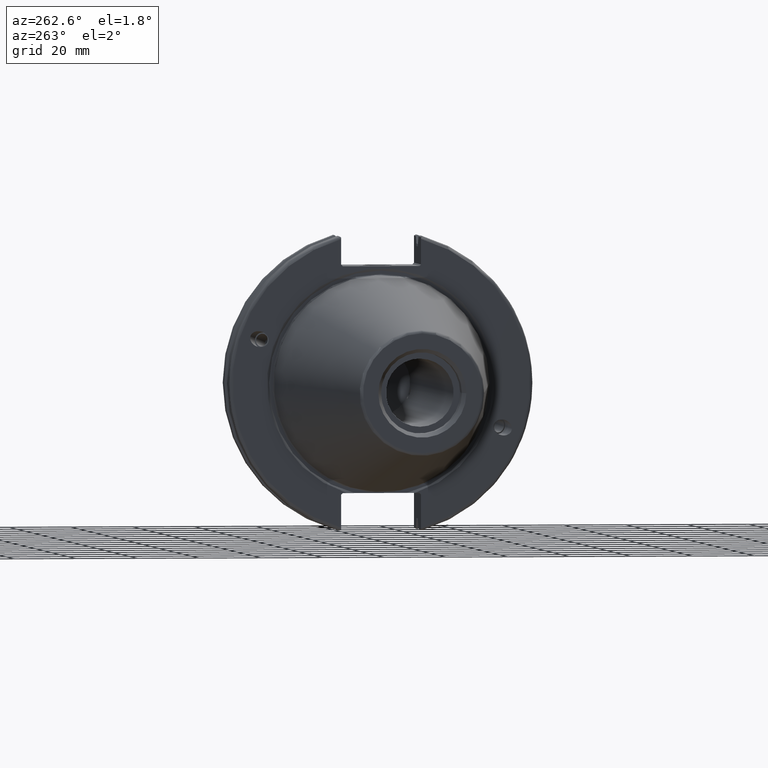
[diagram: clean part render]
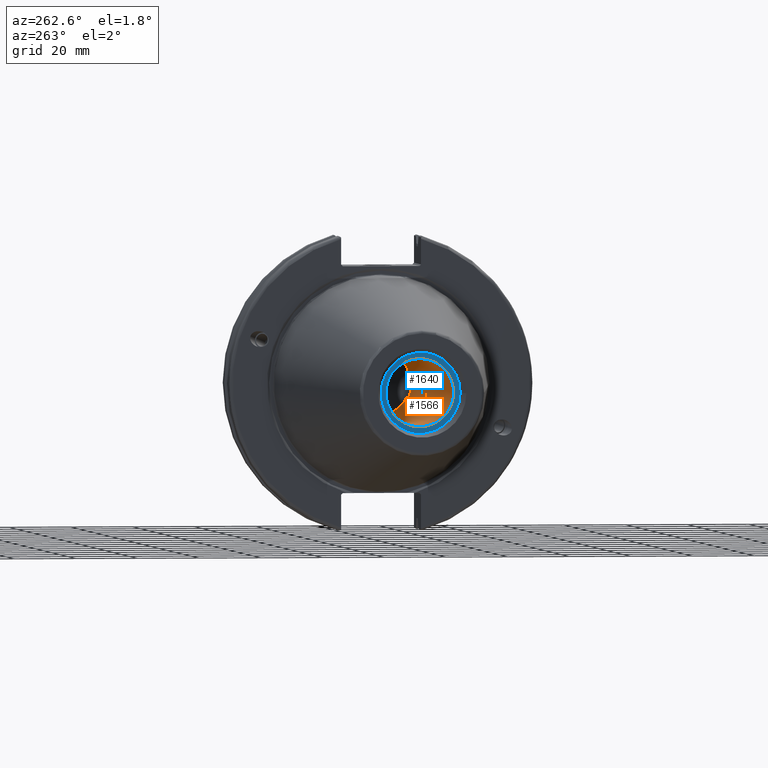
[diagram: same view with the hole feature highlighted: cylindrical wall and planar end face, labeled with their STEP entity ids]
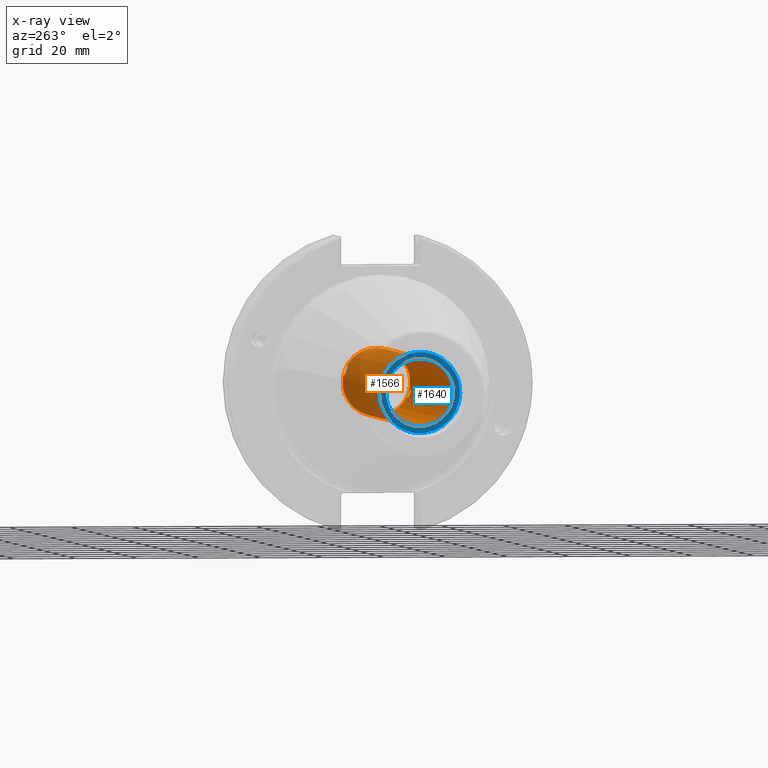
[diagram: x-ray of the same camera — body ghosted, the hole faces saturated]
A machine part, auxiliary view. The highlighted faces form one hole feature of diameter 21.971 mm: the cylindrical wall (entity #1566, orange) and its adjacent planar end face (entity #1640, blue) — they share a circular edge in the B-rep.
The next image is the same camera in x-ray (body ghosted, the hole faces saturated) — the bore reads through the body.
Wall:
#64=FACE_BOUND('',#229,.T.);
#65=FACE_BOUND('',#230,.T.);
#133=FACE_OUTER_BOUND('',#228,.T.);
#228=EDGE_LOOP('',(#1120,#1121,#1122,#1123));
#229=EDGE_LOOP('',(#1124,#1125));
#230=EDGE_LOOP('',(#1126,#1127));
#324=B_SPLINE_CURVE_WITH_KNOTS('',3,(#2469,#2470,#2471,#2472,#2473,#2474,
#2475,#2476,#2477,#2478,#2479,#2480,#2481,#2482,#2483,#2484,#2485,#2486,
#2487,#2488,#2489,#2490,#2491,#2492,#2493,#2494),.UNSPECIFIED.,.F.,.F.,
(4,2,2,2,2,2,2,2,2,2,2,2,4),(0.,0.0611574273332737,0.122314854666547,0.183471284102352,
0.244627713538156,0.30578414297396,0.366940572409764,0.428097999743038,
0.489255427076312,0.550412854409585,0.611570281742859,0.672726711178663,
0.733883140614467),.UNSPECIFIED.);
#325=B_SPLINE_CURVE_WITH_KNOTS('',3,(#2495,#2496,#2497,#2498,#2499,#2500,
#2501,#2502,#2503,#2504),.UNSPECIFIED.,.F.,.F.,(4,2,2,2,4),(0.733883140614467,
0.795039570050271,0.856195999486075,0.917353426819349,0.978510854152623),
 .UNSPECIFIED.);
#326=B_SPLINE_CURVE_WITH_KNOTS('',3,(#2507,#2508,#2509,#2510,#2511,#2512,
#2513,#2514,#2515,#2516,#2517,#2518,#2519,#2520,#2521,#2522,#2523,#2524,
#2525,#2526,#2527,#2528,#2529,#2530,#2531,#2532),.UNSPECIFIED.,.F.,.F.,
(4,2,2,2,2,2,2,2,2,2,2,2,4),(0.,0.0611574273332737,0.122314854666547,0.183471284102352,
0.244627713538156,0.30578414297396,0.366940572409764,0.428097999743038,
0.489255427076312,0.550412854409585,0.611570281742859,0.672726711178663,
0.733883140614467),.UNSPECIFIED.);
#327=B_SPLINE_CURVE_WITH_KNOTS('',3,(#2533,#2534,#2535,#2536,#2537,#2538,
#2539,#2540,#2541,#2542),.UNSPECIFIED.,.F.,.F.,(4,2,2,2,4),(0.733883140614467,
0.795039570050271,0.856195999486075,0.917353426819349,0.978510854152623),
 .UNSPECIFIED.);
#381=LINE('',#2466,#475);
#475=VECTOR('',#1944,10.9855);
#577=CIRCLE('',#1704,10.9855);
#578=CIRCLE('',#1706,10.9855);
#671=VERTEX_POINT('',#2460);
#672=VERTEX_POINT('',#2464);
#673=VERTEX_POINT('',#2467);
#674=VERTEX_POINT('',#2468);
#675=VERTEX_POINT('',#2505);
#676=VERTEX_POINT('',#2506);
#844=EDGE_CURVE('',#671,#671,#577,.T.);
#846=EDGE_CURVE('',#672,#672,#578,.T.);
#847=EDGE_CURVE('',#672,#671,#381,.T.);
#848=EDGE_CURVE('',#673,#674,#324,.T.);
#849=EDGE_CURVE('',#674,#673,#325,.T.);
#850=EDGE_CURVE('',#675,#676,#326,.T.);
#851=EDGE_CURVE('',#676,#675,#327,.T.);
#1120=ORIENTED_EDGE('',*,*,#846,.F.);
#1121=ORIENTED_EDGE('',*,*,#847,.T.);
#1122=ORIENTED_EDGE('',*,*,#844,.F.);
#1123=ORIENTED_EDGE('',*,*,#847,.F.);
#1124=ORIENTED_EDGE('',*,*,#848,.F.);
#1125=ORIENTED_EDGE('',*,*,#849,.F.);
#1126=ORIENTED_EDGE('',*,*,#850,.F.);
#1127=ORIENTED_EDGE('',*,*,#851,.F.);
#1529=CYLINDRICAL_SURFACE('',#1705,10.9855);
#1566=ADVANCED_FACE('',(#133,#64,#65),#1529,.F.);
#1704=AXIS2_PLACEMENT_3D('',#2461,#1937,#1938);
#1705=AXIS2_PLACEMENT_3D('',#2463,#1940,#1941);
#1706=AXIS2_PLACEMENT_3D('',#2465,#1942,#1943);
#1937=DIRECTION('center_axis',(-1.,0.,0.));
#1938=DIRECTION('ref_axis',(0.,0.,1.));
#1940=DIRECTION('center_axis',(-1.,0.,0.));
#1941=DIRECTION('ref_axis',(0.,0.,1.));
#1942=DIRECTION('center_axis',(1.,0.,0.));
#1943=DIRECTION('ref_axis',(0.,0.,1.));
#1944=DIRECTION('',(1.,0.,0.));
#2460=CARTESIAN_POINT('',(13.4,-1.34533574120333E-15,-10.9855));
#2461=CARTESIAN_POINT('Origin',(13.4,0.,0.));
#2463=CARTESIAN_POINT('Origin',(-44.1,0.,0.));
#2464=CARTESIAN_POINT('',(-95.25,1.34533574120333E-15,-10.9855));
#2465=CARTESIAN_POINT('Origin',(-95.25,0.,0.));
#2466=CARTESIAN_POINT('',(-44.1,-1.34533574120333E-15,-10.9855));
#2467=CARTESIAN_POINT('',(11.127,-10.7644060814244,-2.19289123400911));
#2468=CARTESIAN_POINT('',(9.506,-10.3229932856436,-3.75726228450413));
#2469=CARTESIAN_POINT('Ctrl Pts',(11.127,-10.7644060814244,-2.19289123400911));
#2470=CARTESIAN_POINT('Ctrl Pts',(11.3308580911109,-10.7644060814244,-2.19289123400911));
#2471=CARTESIAN_POINT('Ctrl Pts',(11.5480976425658,-10.7563992112981,-2.23339769026782));
#2472=CARTESIAN_POINT('Ctrl Pts',(11.9473884896352,-10.7211890589831,-2.39672575217716));
#2473=CARTESIAN_POINT('Ctrl Pts',(12.1294656702174,-10.6936730645534,-2.51941648519806));
#2474=CARTESIAN_POINT('Ctrl Pts',(12.4169721687679,-10.6236838882786,-2.79990053351312));
#2475=CARTESIAN_POINT('Ctrl Pts',(12.5416766094346,-10.5764720644486,-2.97648040123253));
#2476=CARTESIAN_POINT('Ctrl Pts',(12.7071987049788,-10.4611409987277,-3.35942344936975));
#2477=CARTESIAN_POINT('Ctrl Pts',(12.748,-10.3927157215133,-3.56570146632267));
#2478=CARTESIAN_POINT('Ctrl Pts',(12.748,-10.2532708497739,-3.9488231026856));
#2479=CARTESIAN_POINT('Ctrl Pts',(12.7071987049788,-10.1730946997047,-4.15082415169272));
#2480=CARTESIAN_POINT('Ctrl Pts',(12.5416766094346,-10.015292375161,-4.51830892580662));
#2481=CARTESIAN_POINT('Ctrl Pts',(12.4169721687679,-9.93795537936544,-4.68392412762843));
#2482=CARTESIAN_POINT('Ctrl Pts',(12.1294656702174,-9.81127852795753,-4.94377554954527));
#2483=CARTESIAN_POINT('Ctrl Pts',(11.9473884896352,-9.75349291957811,-5.05544904408575));
#2484=CARTESIAN_POINT('Ctrl Pts',(11.5480976425658,-9.67548020659099,-5.20319824796008));
#2485=CARTESIAN_POINT('Ctrl Pts',(11.3308580911109,-9.65557677676255,-5.23937471059702));
#2486=CARTESIAN_POINT('Ctrl Pts',(10.9231419088891,-9.65557677676255,-5.23937471059702));
#2487=CARTESIAN_POINT('Ctrl Pts',(10.7059023574342,-9.67548020659099,-5.20319824796008));
#2488=CARTESIAN_POINT('Ctrl Pts',(10.3066115103648,-9.75349291957811,-5.05544904408574));
#2489=CARTESIAN_POINT('Ctrl Pts',(10.1245343297826,-9.81127852795753,-4.94377554954527));
#2490=CARTESIAN_POINT('Ctrl Pts',(9.83702783123206,-9.93795537936544,-4.68392412762843));
#2491=CARTESIAN_POINT('Ctrl Pts',(9.71232339056537,-10.015292375161,-4.51830892580662));
#2492=CARTESIAN_POINT('Ctrl Pts',(9.54680129502121,-10.1730946997047,-4.15082415169272));
#2493=CARTESIAN_POINT('Ctrl Pts',(9.506,-10.2532708497739,-3.9488231026856));
#2494=CARTESIAN_POINT('Ctrl Pts',(9.506,-10.3229932856436,-3.75726228450413));
#2495=CARTESIAN_POINT('Ctrl Pts',(9.506,-10.3229932856436,-3.75726228450413));
#2496=CARTESIAN_POINT('Ctrl Pts',(9.506,-10.3927157215133,-3.56570146632267));
#2497=CARTESIAN_POINT('Ctrl Pts',(9.54680129502121,-10.4611409987277,-3.35942344936975));
#2498=CARTESIAN_POINT('Ctrl Pts',(9.71232339056537,-10.5764720644486,-2.97648040123253));
#2499=CARTESIAN_POINT('Ctrl Pts',(9.83702783123205,-10.6236838882786,-2.79990053351312));
#2500=CARTESIAN_POINT('Ctrl Pts',(10.1245343297826,-10.6936730645534,-2.51941648519806));
#2501=CARTESIAN_POINT('Ctrl Pts',(10.3066115103648,-10.7211890589831,-2.39672575217716));
#2502=CARTESIAN_POINT('Ctrl Pts',(10.7059023574342,-10.7563992112981,-2.23339769026782));
#2503=CARTESIAN_POINT('Ctrl Pts',(10.9231419088891,-10.7644060814244,-2.19289123400911));
#2504=CARTESIAN_POINT('Ctrl Pts',(11.127,-10.7644060814244,-2.19289123400911));
#2505=CARTESIAN_POINT('',(11.127,10.7644060814244,2.19289123400911));
#2506=CARTESIAN_POINT('',(9.506,10.3229932856436,3.75726228450413));
#2507=CARTESIAN_POINT('Ctrl Pts',(11.127,10.7644060814244,2.19289123400911));
#2508=CARTESIAN_POINT('Ctrl Pts',(11.3308580911109,10.7644060814244,2.19289123400911));
#2509=CARTESIAN_POINT('Ctrl Pts',(11.5480976425658,10.7563992112981,2.23339769026782));
#2510=CARTESIAN_POINT('Ctrl Pts',(11.9473884896352,10.7211890589831,2.39672575217716));
#2511=CARTESIAN_POINT('Ctrl Pts',(12.1294656702174,10.6936730645534,2.51941648519806));
#2512=CARTESIAN_POINT('Ctrl Pts',(12.4169721687679,10.6236838882786,2.79990053351312));
#2513=CARTESIAN_POINT('Ctrl Pts',(12.5416766094346,10.5764720644486,2.97648040123253));
#2514=CARTESIAN_POINT('Ctrl Pts',(12.7071987049788,10.4611409987277,3.35942344936975));
#2515=CARTESIAN_POINT('Ctrl Pts',(12.748,10.3927157215133,3.56570146632267));
#2516=CARTESIAN_POINT('Ctrl Pts',(12.748,10.2532708497739,3.9488231026856));
#2517=CARTESIAN_POINT('Ctrl Pts',(12.7071987049788,10.1730946997047,4.15082415169273));
#2518=CARTESIAN_POINT('Ctrl Pts',(12.5416766094346,10.015292375161,4.51830892580663));
#2519=CARTESIAN_POINT('Ctrl Pts',(12.4169721687679,9.93795537936544,4.68392412762843));
#2520=CARTESIAN_POINT('Ctrl Pts',(12.1294656702174,9.81127852795753,4.94377554954528));
#2521=CARTESIAN_POINT('Ctrl Pts',(11.9473884896352,9.75349291957811,5.05544904408575));
#2522=CARTESIAN_POINT('Ctrl Pts',(11.5480976425658,9.67548020659099,5.20319824796009));
#2523=CARTESIAN_POINT('Ctrl Pts',(11.3308580911109,9.65557677676255,5.23937471059702));
#2524=CARTESIAN_POINT('Ctrl Pts',(10.9231419088891,9.65557677676255,5.23937471059702));
#2525=CARTESIAN_POINT('Ctrl Pts',(10.7059023574342,9.67548020659099,5.20319824796008));
#2526=CARTESIAN_POINT('Ctrl Pts',(10.3066115103648,9.75349291957811,5.05544904408574));
#2527=CARTESIAN_POINT('Ctrl Pts',(10.1245343297826,9.81127852795753,4.94377554954527));
#2528=CARTESIAN_POINT('Ctrl Pts',(9.83702783123206,9.93795537936544,4.68392412762843));
#2529=CARTESIAN_POINT('Ctrl Pts',(9.71232339056537,10.015292375161,4.51830892580662));
#2530=CARTESIAN_POINT('Ctrl Pts',(9.54680129502121,10.1730946997047,4.15082415169272));
#2531=CARTESIAN_POINT('Ctrl Pts',(9.506,10.2532708497739,3.9488231026856));
#2532=CARTESIAN_POINT('Ctrl Pts',(9.506,10.3229932856436,3.75726228450413));
#2533=CARTESIAN_POINT('Ctrl Pts',(9.506,10.3229932856436,3.75726228450413));
#2534=CARTESIAN_POINT('Ctrl Pts',(9.506,10.3927157215133,3.56570146632267));
#2535=CARTESIAN_POINT('Ctrl Pts',(9.54680129502121,10.4611409987277,3.35942344936975));
#2536=CARTESIAN_POINT('Ctrl Pts',(9.71232339056537,10.5764720644486,2.97648040123254));
#2537=CARTESIAN_POINT('Ctrl Pts',(9.83702783123205,10.6236838882786,2.79990053351313));
#2538=CARTESIAN_POINT('Ctrl Pts',(10.1245343297826,10.6936730645534,2.51941648519806));
#2539=CARTESIAN_POINT('Ctrl Pts',(10.3066115103648,10.7211890589831,2.39672575217716));
#2540=CARTESIAN_POINT('Ctrl Pts',(10.7059023574342,10.7563992112981,2.23339769026782));
#2541=CARTESIAN_POINT('Ctrl Pts',(10.9231419088891,10.7644060814244,2.19289123400911));
#2542=CARTESIAN_POINT('Ctrl Pts',(11.127,10.7644060814244,2.19289123400911));
End face:
#79=FACE_BOUND('',#318,.T.);
#118=PLANE('',#1838);
#207=FACE_OUTER_BOUND('',#317,.T.);
#317=EDGE_LOOP('',(#1519));
#318=EDGE_LOOP('',(#1520));
#578=CIRCLE('',#1706,10.9855);
#635=CIRCLE('',#1839,13.1);
#672=VERTEX_POINT('',#2464);
#798=VERTEX_POINT('',#3337);
#846=EDGE_CURVE('',#672,#672,#578,.T.);
#1039=EDGE_CURVE('',#798,#798,#635,.T.);
#1519=ORIENTED_EDGE('',*,*,#1039,.F.);
#1520=ORIENTED_EDGE('',*,*,#846,.T.);
#1640=ADVANCED_FACE('',(#207,#79),#118,.T.);
#1706=AXIS2_PLACEMENT_3D('',#2465,#1942,#1943);
#1838=AXIS2_PLACEMENT_3D('',#3336,#2282,#2283);
#1839=AXIS2_PLACEMENT_3D('',#3338,#2284,#2285);
#1942=DIRECTION('center_axis',(1.,0.,0.));
#1943=DIRECTION('ref_axis',(0.,0.,1.));
#2282=DIRECTION('center_axis',(-1.,0.,0.));
#2283=DIRECTION('ref_axis',(0.,0.,1.));
#2284=DIRECTION('center_axis',(1.,0.,0.));
#2285=DIRECTION('ref_axis',(0.,0.,-1.));
#2464=CARTESIAN_POINT('',(-95.25,1.34533574120333E-15,-10.9855));
#2465=CARTESIAN_POINT('Origin',(-95.25,0.,0.));
#3336=CARTESIAN_POINT('Origin',(-95.25,13.1,0.));
#3337=CARTESIAN_POINT('',(-95.25,-13.1,-1.60428730688303E-15));
#3338=CARTESIAN_POINT('Origin',(-95.25,0.,0.));